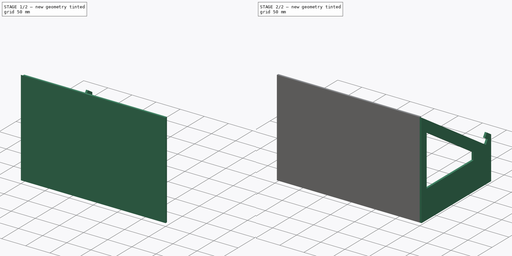
[diagram: build sequence overview — one tinted view per stage of 2, left to right]
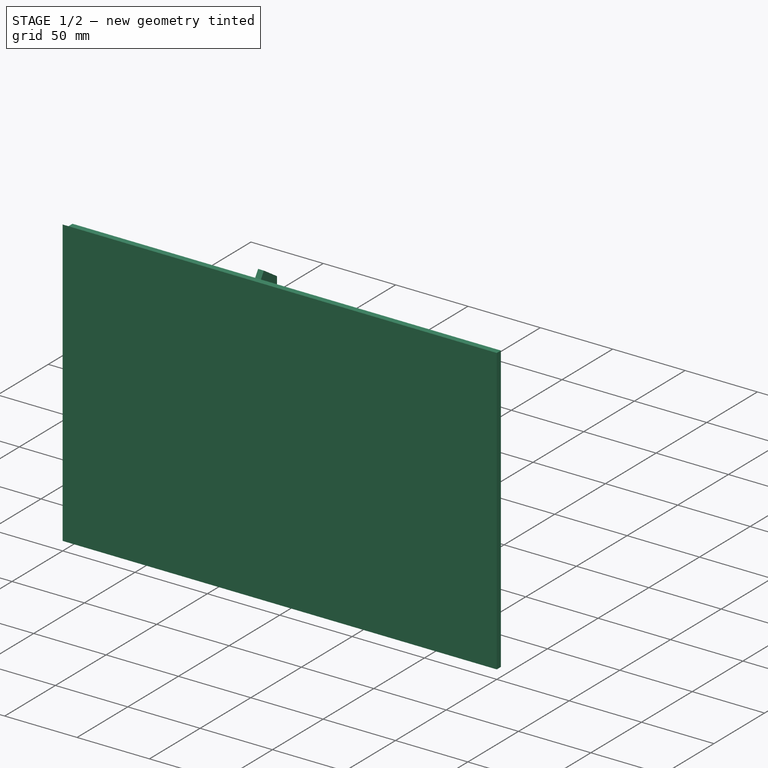
[diagram: stage 1 of 2 — iso view after this stage's code; geometry added in this stage tinted green]
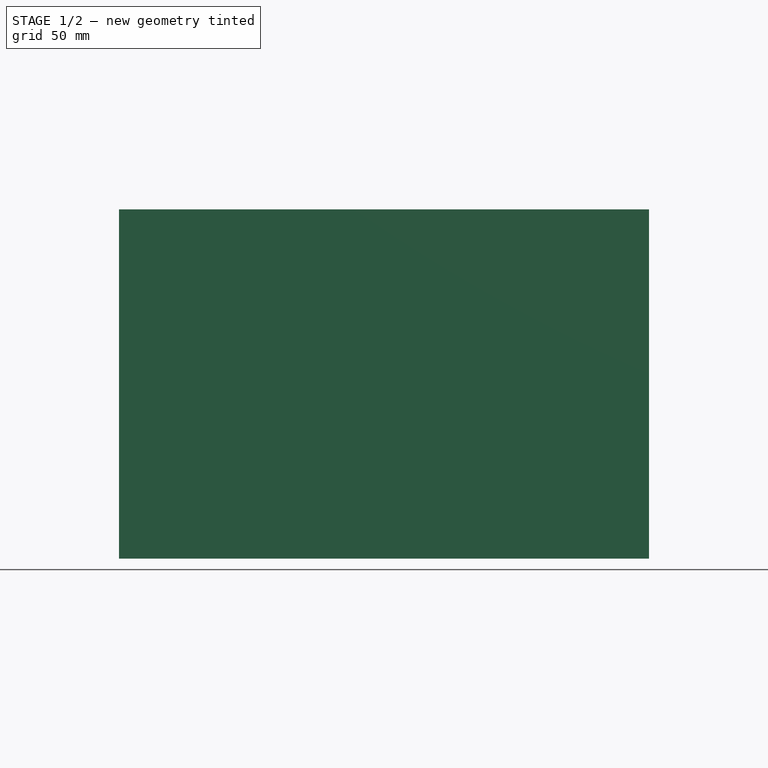
[diagram: stage 1 of 2 — front view after this stage's code; geometry added in this stage tinted green]
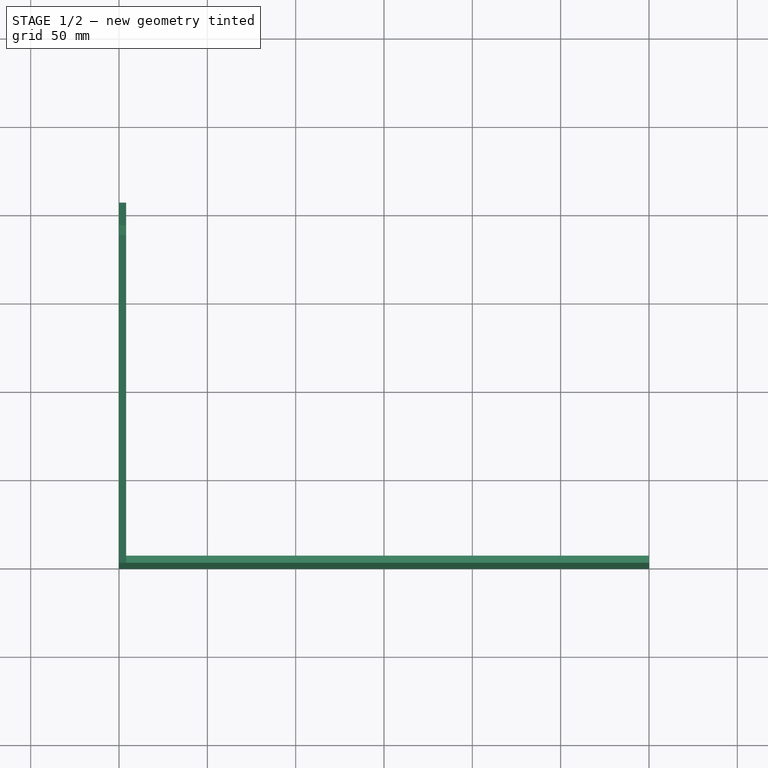
[diagram: stage 1 of 2 — top view after this stage's code; geometry added in this stage tinted green]
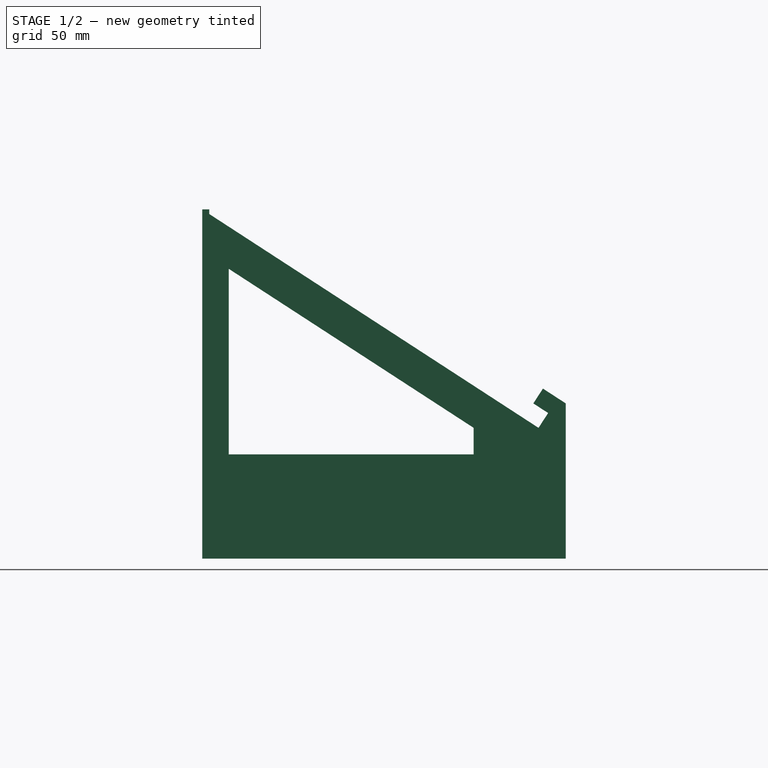
[diagram: stage 1 of 2 — right view after this stage's code; geometry added in this stage tinted green]
FCSTD DOCUMENT  (FreeCAD 0.17RUnknown)
Label: AngledStand
License: All rights reserved
LicenseURL: http://en.wikipedia.org/wiki/All_rights_reserved
objects: Spreadsheet::Sheet×1, Part::Box×1, Sketcher::SketchObject×1, PartDesign::Pad×1, PartDesign::Body×1, PartDesign::FeatureBase×1
note: 6 computed .brp shape members not serialized (recipe doc carries the construction recipe); baked Part::Feature solids carry a one-line shape summary decoded from their .brp

FEATURE [Spreadsheet::Sheet] Spreadsheet  label="param"
  cells = A1=Laptop Width; B1=Laptop Depth; C1=Laptop Height; E1=Laptop Stand-angle; G1=Side Padding; A2(width)=330; B2(depth)=227; C2(height)=10; E2(angle)=33; G2(padding)=15; A3=Lower Drawer Height; B3=UpperDrawer minima; C3=Upper Drawer back_margin; D3=Upper drawer TopMargin; A4(offset)=64; B4(uppermin)=15; C4(upper_back_pad)=15; D4(upper_top_pad)=20; A6=Material Thickness; A7(thicknes)=4; A13=Computed Values; A14=Resulting Stand Width:; B14=Resulting Back height:; A15(netwidth)==A2 - G2 * 2; B15(backheight)=197.63306094800001; B16==sin(angle) * depth + offset + height
FEATURE [Part::Box] Box  label="Cube"
  AttacherType = Attacher::AttachEngine3D
  Height = 197.633
  Length = 296
  Placement = pos=(4,0,0) rot=(0,0,1;0rad)
  Width = 4
  expr: Placement.Base.x = param.thicknes
  expr: Length = param.netwidth - param.thicknes
  expr: Width = param.thicknes
  expr: Height = param.backheight
FEATURE [Sketcher::SketchObject] Sketch
  MapMode = 5
  Placement = pos=(0,0,0) rot=(0.57735,0.57735,0.57735;2.0944rad)
  Support = -> [YZ_Plane]
  expr: Constraints[37] = param.uppermin
  expr: Constraints[35] = param.upper_top_pad
  expr: Constraints[34] = param.upper_back_pad
  expr: Constraints[25] = Spreadsheet.uppermin
  expr: Constraints[21] = param.height
  expr: Constraints[38] = param.upper_top_pad
  expr: Constraints[26] = param.angle
  expr: Constraints[20] = param.height
  expr: Constraints[19] = param.offset + param.height
  expr: Constraints[11] = param.depth
  expr: Constraints[10] = param.height
  expr: Constraints[12] = param.height
  sketch-geometry (13):
    g0: LineSegment StartX=0 StartY=0 StartZ=0 EndX=205.825 EndY=0 EndZ=0
    g1: LineSegment StartX=205.825 StartY=87.8163 StartZ=0 EndX=192.884 EndY=96.2198 EndZ=0
    g2: LineSegment StartX=192.884 StartY=96.2198 StartZ=0 EndX=187.438 EndY=87.8331 EndZ=0
    g3: LineSegment StartX=187.438 StartY=87.8331 StartZ=0 EndX=195.825 EndY=82.3867 EndZ=0
    g4: LineSegment StartX=195.825 StartY=82.3867 StartZ=0 EndX=190.378 EndY=74 EndZ=0
    g5: LineSegment StartX=190.378 StartY=74 StartZ=0 EndX=0 EndY=197.633 EndZ=0
    g6: LineSegment StartX=205.825 StartY=87.8163 StartZ=0 EndX=205.825 EndY=0 EndZ=0
    g7: LineSegment StartX=0 StartY=197.633 StartZ=0 EndX=0 EndY=0 EndZ=0
    g8: LineSegment [constr] StartX=205.825 StartY=59 StartZ=0 EndX=0 EndY=59 EndZ=0
    g9: LineSegment StartX=153.657 StartY=74 StartZ=0 EndX=153.657 EndY=59 EndZ=0
    g10: LineSegment StartX=153.657 StartY=59 StartZ=0 EndX=15 EndY=59 EndZ=0
    g11: LineSegment StartX=15 StartY=59 StartZ=0 EndX=15 EndY=164.045 EndZ=0
    g12: LineSegment StartX=15 StartY=164.045 StartZ=0 EndX=153.657 EndY=74 EndZ=0
  constraints (39):
    c: Coincident(g-1,g0)
    c: Horizontal(g0)
    c: Coincident(g1,g2)
    c: Coincident(g2,g3)
    c: Coincident(g3,g4)
    c: Coincident(g4,g5)
    c: Angle(g4,g5) = 1.5708
    c: Angle(g3,g4) = 1.5708
    c: Angle(g3,g2) = 1.5708
    c: Angle(g2,g1) = 1.5708
    c: Distance(g2) = 10
    c: Distance(g5,g4) = 227
    c: Distance(g3,g4) = 10
    c: Coincident(g6,g1)
    c: Vertical(g6)
    c: Coincident(g0,g6)
    c: Coincident(g7,g5)
    c: Coincident(g7,g-1)
    c: Vertical(g7)
    c: Distance(g4,g0) = 74
    c: Distance(g3) = 10
    c: Distance(g3,g6) = 10
    c: PointOnObject(g8,g6)
    c: PointOnObject(g8,g7)
    c: Horizontal(g8)
    c: Distance(g4,g8) = 15
    c: Angle(g5,g8) = 0.575959
    c: Vertical(g9)
    c: Coincident(g9,g10)
    c: Horizontal(g10)
    c: Coincident(g10,g11)
    c: Vertical(g11)
    c: Coincident(g11,g12)
    c: Coincident(g12,g9)
    c: Distance(g11,g7) = 15
    c: Distance(g11,g5) = 20
    c: PointOnObject(g9,g8)
    c: Distance(g9) = 15
    c: Distance(g9,g5) = 20
FEATURE [PartDesign::Pad] Pad
  Length = 4
  Length2 = 100
  Placement = pos=(0,0,0) rot=(0.57735,0.57735,0.57735;2.0944rad)
  Profile = -> Sketch
  Type = 0
  expr: Length = param.thicknes
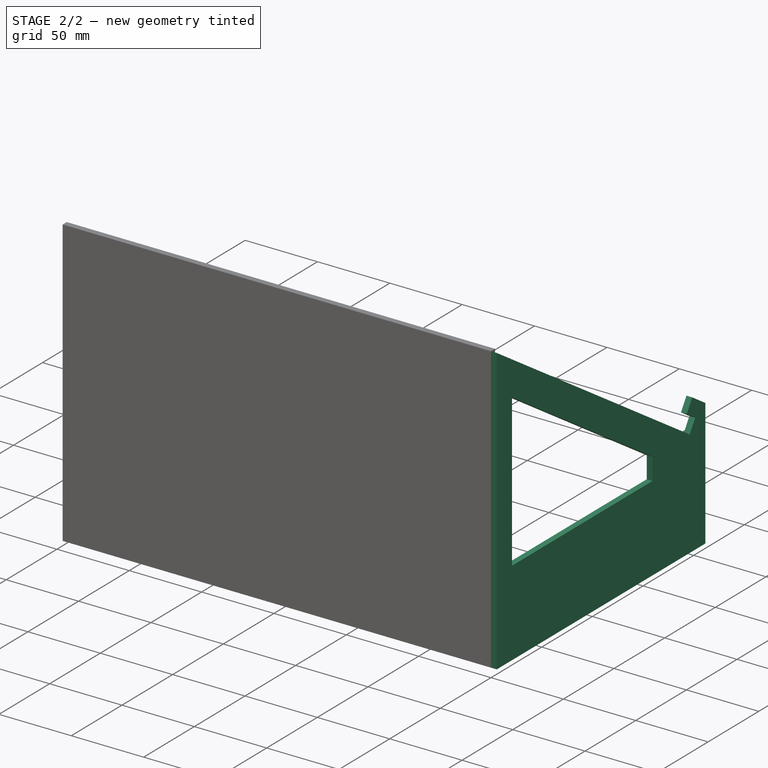
[diagram: stage 2 of 2 — iso view after this stage's code; geometry added in this stage tinted green]
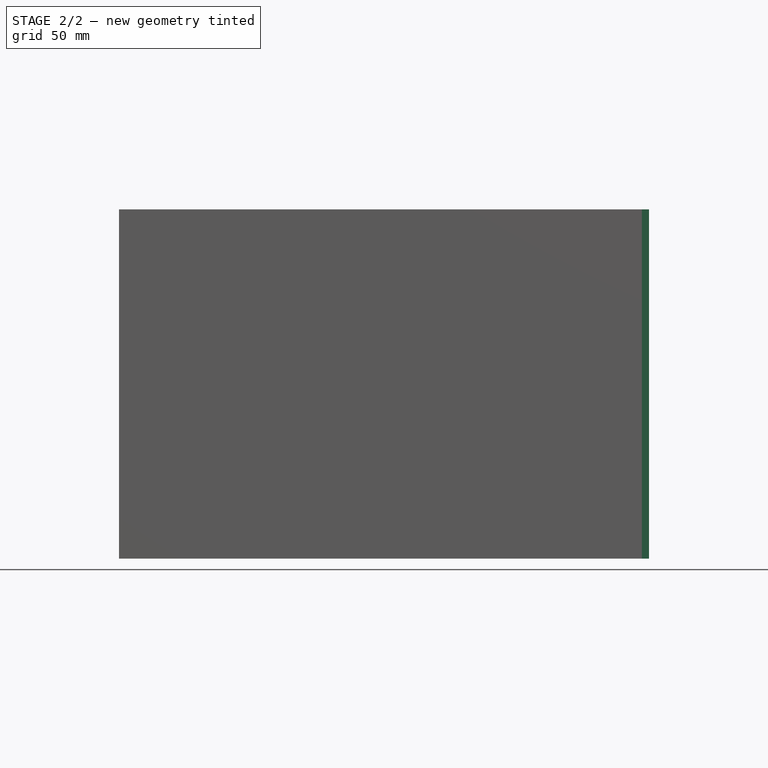
[diagram: stage 2 of 2 — front view after this stage's code; geometry added in this stage tinted green]
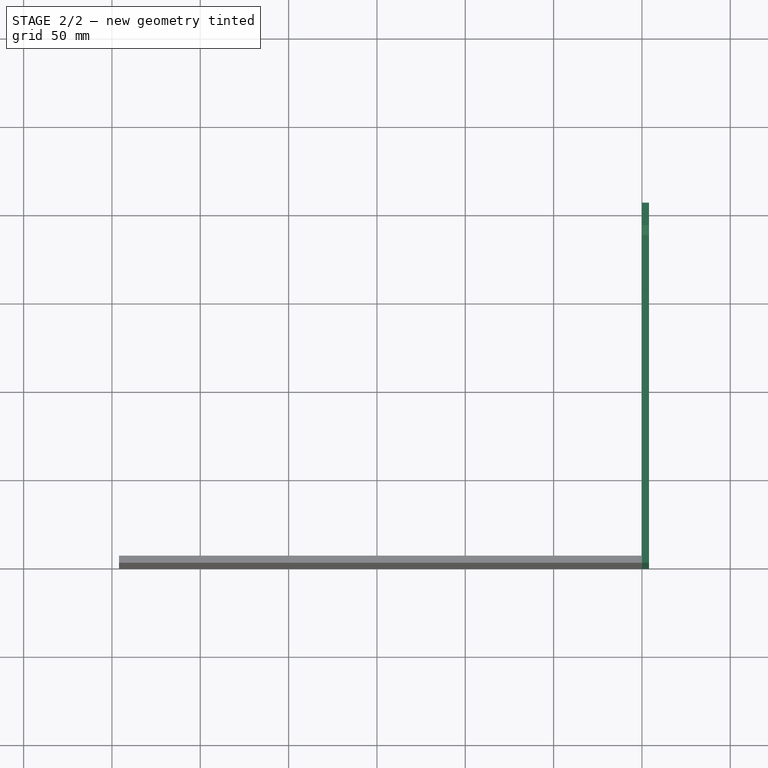
[diagram: stage 2 of 2 — top view after this stage's code; geometry added in this stage tinted green]
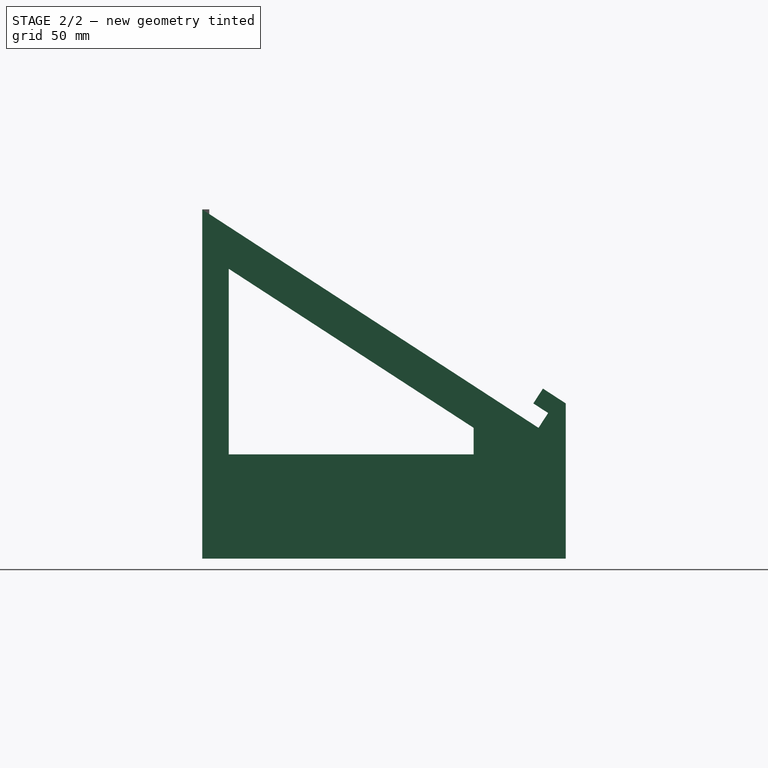
[diagram: stage 2 of 2 — right view after this stage's code; geometry added in this stage tinted green]
FEATURE [PartDesign::Body] Body
  Group = -> [Sketch,Pad]
  Origin = -> Origin
  Tip = -> Pad
FEATURE [PartDesign::FeatureBase] Clone
  BaseFeature = -> Pad
  Placement = pos=(300,0,0) rot=(0.57735,0.57735,0.57735;2.0944rad)
  expr: Placement.Base.x = param.netwidth
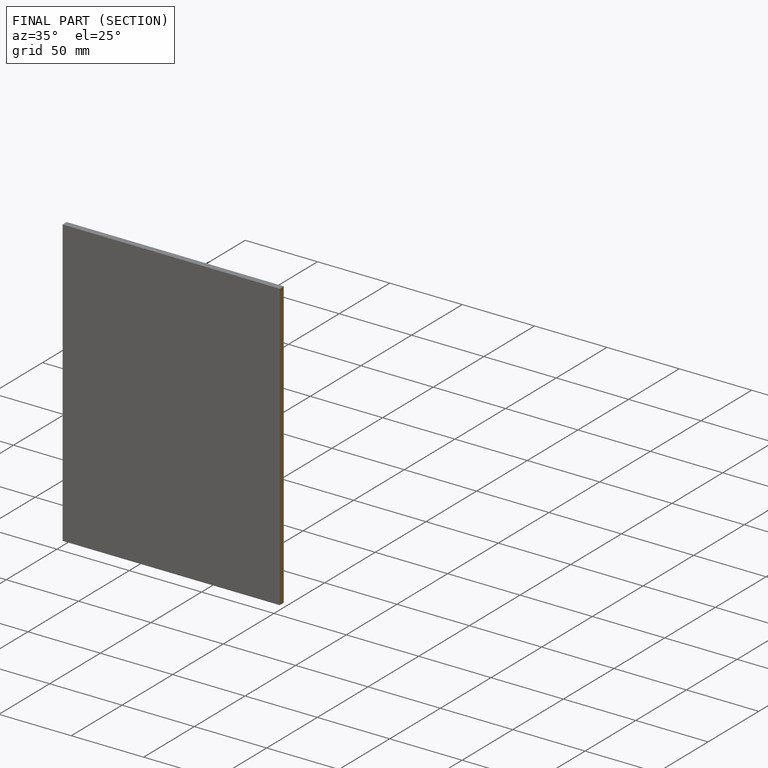
[diagram: finished part — half-section view (interior)]
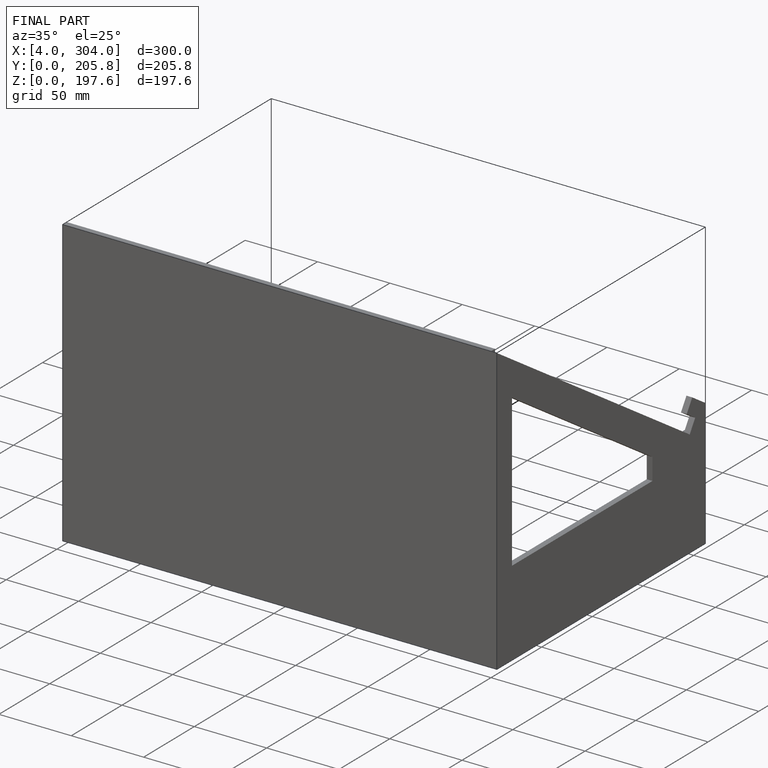
[diagram: finished part — iso view with bounding-box wireframe]
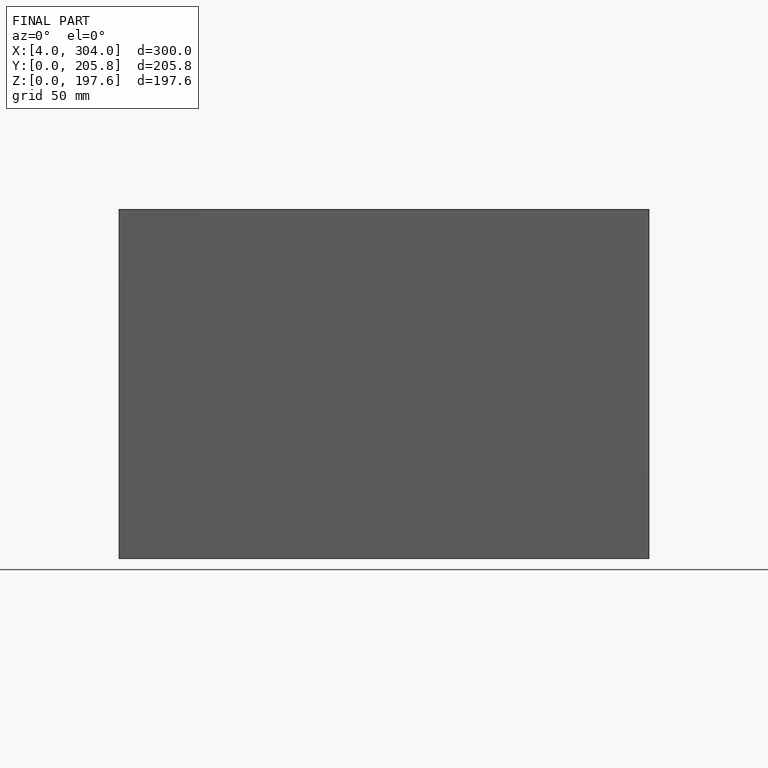
[diagram: finished part — front view with bounding-box wireframe]
